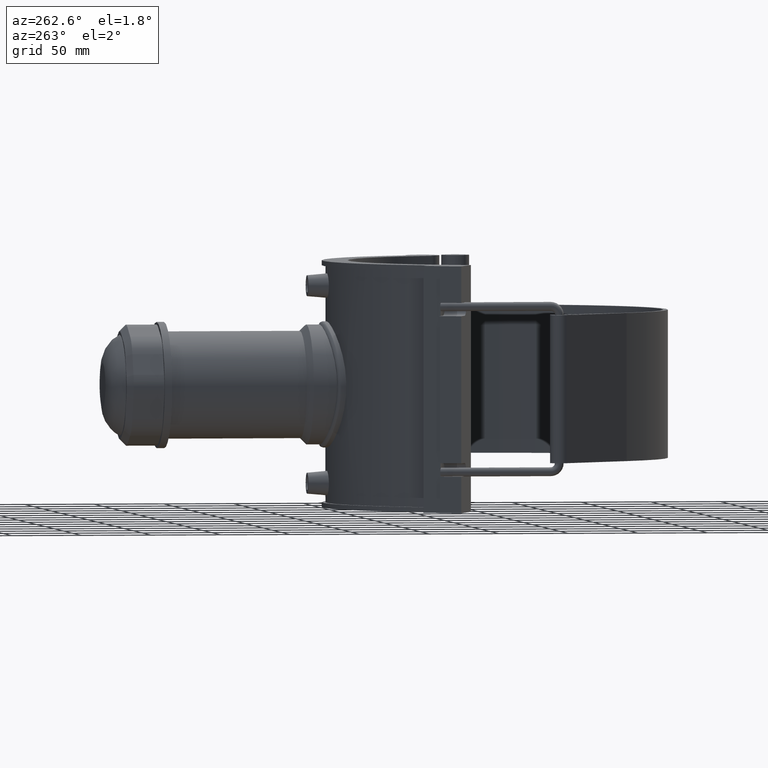
[diagram: clean part render]
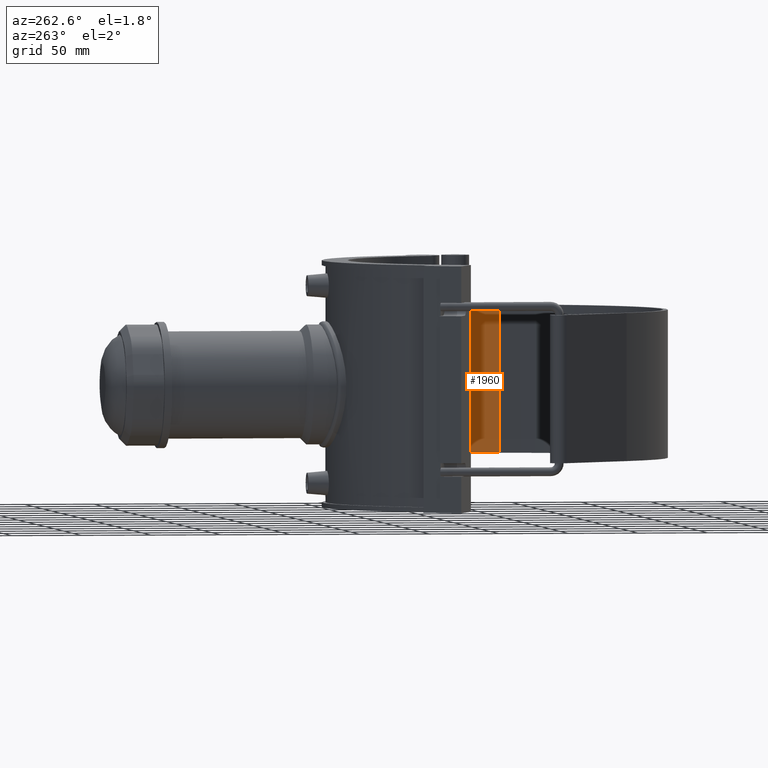
[diagram: same view with one face highlighted and labeled with its STEP entity id]
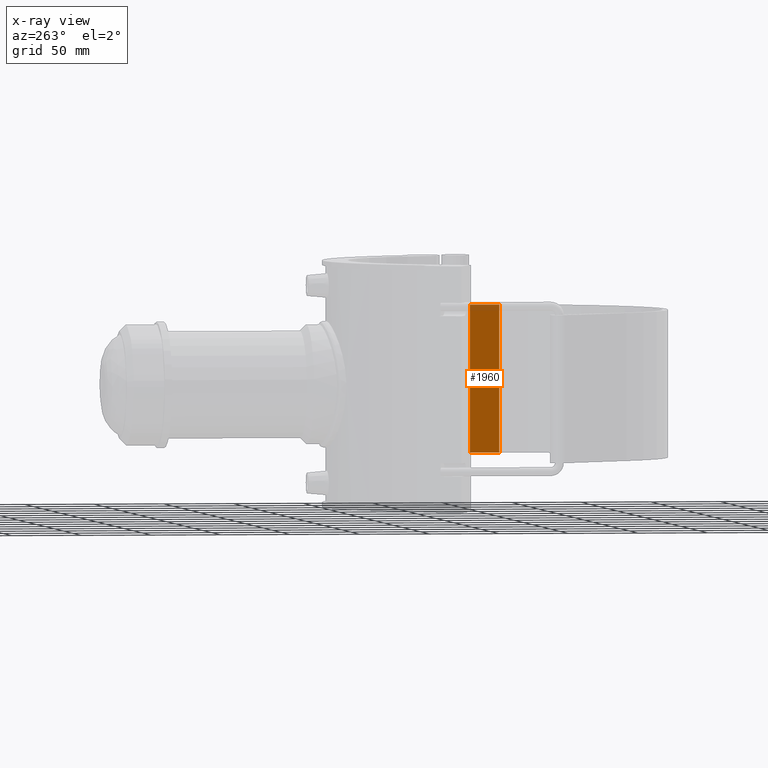
[diagram: x-ray of the same camera — body ghosted, the highlighted face saturated]
A machine part, auxiliary view. The second image highlights one B-rep face of the part: STEP entity #1960.
The next image is the same camera in x-ray: the body ghosted, the highlighted face saturated — about 8% of this face is hidden behind the body in this view.
In plain terms, the highlighted planar face has unit normal (-0.9959, 0.0906, 0).
Its self-contained STEP definition (entity closure, byte-faithful):
#105=LINE('',#3361,#266);
#108=LINE('',#3373,#269);
#185=LINE('',#3602,#346);
#187=LINE('',#3605,#348);
#266=VECTOR('',#2454,21.0798548940247);
#269=VECTOR('',#2465,21.0798548940247);
#346=VECTOR('',#2676,105.6);
#348=VECTOR('',#2680,105.6);
#539=FACE_OUTER_BOUND('',#681,.T.);
#681=EDGE_LOOP('',(#1687,#1688,#1689,#1690));
#896=VERTEX_POINT('',#3358);
#897=VERTEX_POINT('',#3360);
#901=VERTEX_POINT('',#3371);
#902=VERTEX_POINT('',#3372);
#1110=EDGE_CURVE('',#896,#897,#105,.T.);
#1116=EDGE_CURVE('',#901,#902,#108,.T.);
#1227=EDGE_CURVE('',#897,#901,#185,.T.);
#1229=EDGE_CURVE('',#896,#902,#187,.T.);
#1687=ORIENTED_EDGE('',*,*,#1227,.F.);
#1688=ORIENTED_EDGE('',*,*,#1110,.F.);
#1689=ORIENTED_EDGE('',*,*,#1229,.T.);
#1690=ORIENTED_EDGE('',*,*,#1116,.F.);
#1858=PLANE('',#2156);
#1960=ADVANCED_FACE('',(#539),#1858,.T.);
#2156=AXIS2_PLACEMENT_3D('',#3604,#2678,#2679);
#2454=DIRECTION('',(0.0905873526607496,0.995888513608786,0.));
#2465=DIRECTION('',(-0.0905873526607496,-0.995888513608786,0.));
#2676=DIRECTION('',(0.,0.,1.));
#2678=DIRECTION('center_axis',(-0.995888513608786,0.0905873526607496,0.));
#2679=DIRECTION('ref_axis',(-0.0905873526607493,-0.995888513608786,0.));
#2680=DIRECTION('',(0.,0.,1.));
#3358=CARTESIAN_POINT('',(112.037457780988,-10.1910771743344,-52.8));
#3360=CARTESIAN_POINT('',(113.947026030311,10.8021081831647,-52.8));
#3361=CARTESIAN_POINT('',(114.552404199298,17.4574430304258,-52.8));
#3371=CARTESIAN_POINT('',(113.947026030311,10.8021081831647,52.8));
#3372=CARTESIAN_POINT('',(112.037457780988,-10.1910771743344,52.8));
#3373=CARTESIAN_POINT('',(114.552404199298,17.4574430304258,52.8));
#3602=CARTESIAN_POINT('',(113.947026030311,10.8021081831647,0.));
#3604=CARTESIAN_POINT('Origin',(114.552404199298,17.4574430304258,0.));
#3605=CARTESIAN_POINT('',(112.037457780988,-10.1910771743344,0.));